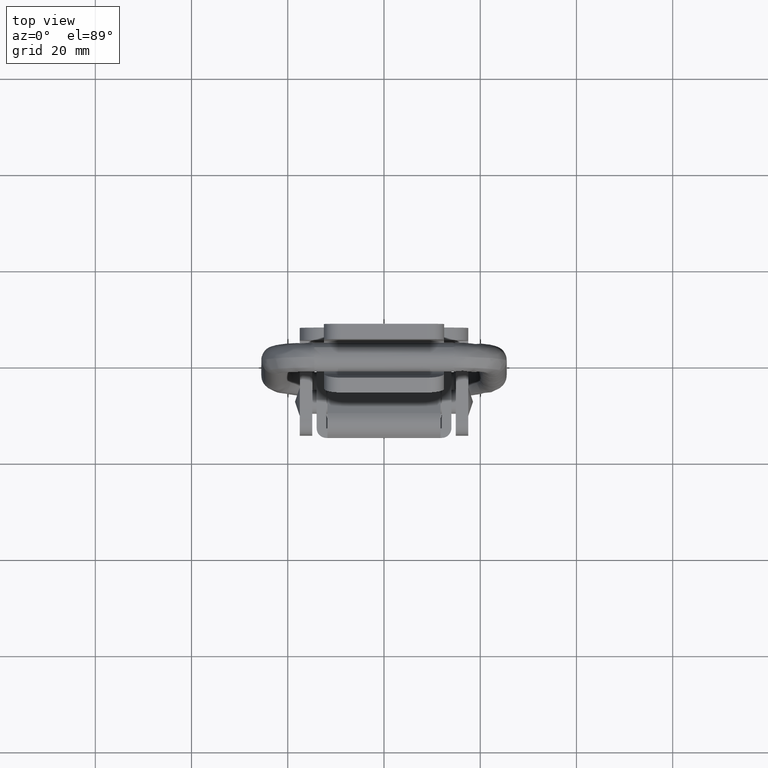
[diagram: clean part render]
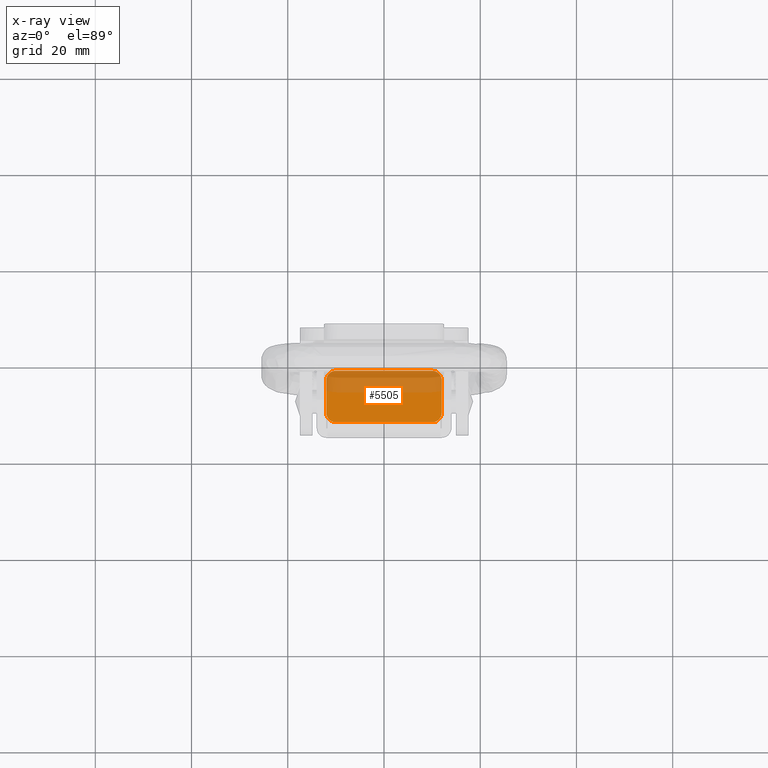
[diagram: x-ray — body ghosted, one internal face saturated and labeled with its STEP entity id]
A machine part, top view, then the same camera in x-ray: the body is ghosted and one INTERNAL B-rep face — a face not visible from any outside direction — is saturated and labeled: STEP entity #5505.
In plain terms, the highlighted face is a freeform B-spline surface patch.
Its self-contained STEP definition (entity closure, byte-faithful):
#5176=CARTESIAN_POINT('',(-2.400000000000000,-10.0,-72.700000000000003));
#5177=VERTEX_POINT('',#5176);
#5178=CARTESIAN_POINT('',(-4.400000000000000,-12.0,-72.700000000000003));
#5179=VERTEX_POINT('',#5178);
#5180=CARTESIAN_POINT('',(-2.400000000000000,-10.0,-72.700000000000003));
#5181=CARTESIAN_POINT('',(-2.400000000000001,-12.0,-72.700000000000003));
#5182=CARTESIAN_POINT('',(-4.400000000000000,-12.0,-72.700000000000003));
#5190=(BOUNDED_CURVE()B_SPLINE_CURVE(2,(#5180,#5181,#5182),.UNSPECIFIED.,.F.,.U.)CURVE()GEOMETRIC_REPRESENTATION_ITEM()QUASI_UNIFORM_CURVE()RATIONAL_B_SPLINE_CURVE((1.0,0.707106781186548,1.0))REPRESENTATION_ITEM(''));
#5191=EDGE_CURVE('',#5177,#5179,#5190,.T.);
#5254=CARTESIAN_POINT('',(-13.199999999999999,-10.0,-72.700000000000003));
#5255=VERTEX_POINT('',#5254);
#5261=CARTESIAN_POINT('',(-11.199999999999999,-12.0,-72.700000000000003));
#5262=VERTEX_POINT('',#5261);
#5263=CARTESIAN_POINT('',(-11.199999999999999,-12.0,-72.700000000000003));
#5264=CARTESIAN_POINT('',(-13.199999999999998,-12.0,-72.700000000000003));
#5265=CARTESIAN_POINT('',(-13.199999999999999,-10.0,-72.700000000000003));
#5273=(BOUNDED_CURVE()B_SPLINE_CURVE(2,(#5263,#5264,#5265),.UNSPECIFIED.,.F.,.U.)CURVE()GEOMETRIC_REPRESENTATION_ITEM()QUASI_UNIFORM_CURVE()RATIONAL_B_SPLINE_CURVE((1.0,0.707106781186548,1.0))REPRESENTATION_ITEM(''));
#5274=EDGE_CURVE('',#5262,#5255,#5273,.T.);
#5298=CARTESIAN_POINT('',(-4.400000000000000,12.0,-72.700000000000003));
#5299=VERTEX_POINT('',#5298);
#5300=CARTESIAN_POINT('',(-2.400000000000000,10.0,-72.700000000000003));
#5301=VERTEX_POINT('',#5300);
#5302=CARTESIAN_POINT('',(-4.400000000000000,12.0,-72.700000000000003));
#5303=CARTESIAN_POINT('',(-2.400000000000001,12.0,-72.700000000000003));
#5304=CARTESIAN_POINT('',(-2.400000000000000,10.0,-72.700000000000003));
#5312=(BOUNDED_CURVE()B_SPLINE_CURVE(2,(#5302,#5303,#5304),.UNSPECIFIED.,.F.,.U.)CURVE()GEOMETRIC_REPRESENTATION_ITEM()QUASI_UNIFORM_CURVE()RATIONAL_B_SPLINE_CURVE((1.0,0.707106781186548,1.0))REPRESENTATION_ITEM(''));
#5313=EDGE_CURVE('',#5299,#5301,#5312,.T.);
#5376=CARTESIAN_POINT('',(-11.199999999999999,12.0,-72.700000000000003));
#5377=VERTEX_POINT('',#5376);
#5383=CARTESIAN_POINT('',(-13.199999999999999,10.0,-72.700000000000003));
#5384=VERTEX_POINT('',#5383);
#5385=CARTESIAN_POINT('',(-13.199999999999999,10.0,-72.700000000000003));
#5386=CARTESIAN_POINT('',(-13.199999999999998,12.0,-72.700000000000003));
#5387=CARTESIAN_POINT('',(-11.199999999999999,12.0,-72.700000000000003));
#5395=(BOUNDED_CURVE()B_SPLINE_CURVE(2,(#5385,#5386,#5387),.UNSPECIFIED.,.F.,.U.)CURVE()GEOMETRIC_REPRESENTATION_ITEM()QUASI_UNIFORM_CURVE()RATIONAL_B_SPLINE_CURVE((1.0,0.707106781186548,1.0))REPRESENTATION_ITEM(''));
#5396=EDGE_CURVE('',#5384,#5377,#5395,.T.);
#5417=CARTESIAN_POINT('',(-11.199999999999999,-12.0,-72.700000000000003));
#5418=CARTESIAN_POINT('',(-4.400000000000000,-12.0,-72.700000000000003));
#5419=QUASI_UNIFORM_CURVE('',1,(#5417,#5418),.UNSPECIFIED.,.F.,.U.);
#5420=EDGE_CURVE('',#5262,#5179,#5419,.T.);
#5431=CARTESIAN_POINT('',(-11.199999999999999,12.0,-72.700000000000003));
#5432=CARTESIAN_POINT('',(-4.400000000000000,12.0,-72.700000000000003));
#5433=QUASI_UNIFORM_CURVE('',1,(#5431,#5432),.UNSPECIFIED.,.F.,.U.);
#5434=EDGE_CURVE('',#5377,#5299,#5433,.T.);
#5475=CARTESIAN_POINT('',(-2.400000000000000,10.0,-72.700000000000003));
#5476=CARTESIAN_POINT('',(-2.400000000000000,-10.0,-72.700000000000003));
#5477=QUASI_UNIFORM_CURVE('',1,(#5475,#5476),.UNSPECIFIED.,.F.,.U.);
#5478=EDGE_CURVE('',#5301,#5177,#5477,.T.);
#5486=CARTESIAN_POINT('',(-1.860540160900355,-13.198799953483340,-72.700000000000003));
#5487=CARTESIAN_POINT('',(-13.739459452861549,-13.198799953483340,-72.700000000000003));
#5488=CARTESIAN_POINT('',(-1.860540160900355,13.198800597213509,-72.700000000000003));
#5489=CARTESIAN_POINT('',(-13.739459452861549,13.198800597213509,-72.700000000000003));
#5490=B_SPLINE_SURFACE_WITH_KNOTS('',1,1,((#5486,#5488),(#5487,#5489)),.UNSPECIFIED.,.F.,.F.,.U.,(2,2),(2,2),(0.0,11.878919291961189),(0.0,26.397600550696851),.UNSPECIFIED.);
#5491=CARTESIAN_POINT('',(-13.199999999999999,10.0,-72.700000000000003));
#5492=CARTESIAN_POINT('',(-13.199999999999999,-10.0,-72.700000000000003));
#5493=QUASI_UNIFORM_CURVE('',1,(#5491,#5492),.UNSPECIFIED.,.F.,.U.);
#5494=EDGE_CURVE('',#5384,#5255,#5493,.T.);
#5495=ORIENTED_EDGE('',*,*,#5494,.F.);
#5496=ORIENTED_EDGE('',*,*,#5396,.T.);
#5497=ORIENTED_EDGE('',*,*,#5434,.T.);
#5498=ORIENTED_EDGE('',*,*,#5313,.T.);
#5499=ORIENTED_EDGE('',*,*,#5478,.T.);
#5500=ORIENTED_EDGE('',*,*,#5191,.T.);
#5501=ORIENTED_EDGE('',*,*,#5420,.F.);
#5502=ORIENTED_EDGE('',*,*,#5274,.T.);
#5503=EDGE_LOOP('',(#5495,#5496,#5497,#5498,#5499,#5500,#5501,#5502));
#5504=FACE_OUTER_BOUND('',#5503,.T.);
#5505=ADVANCED_FACE('',(#5504),#5490,.T.);